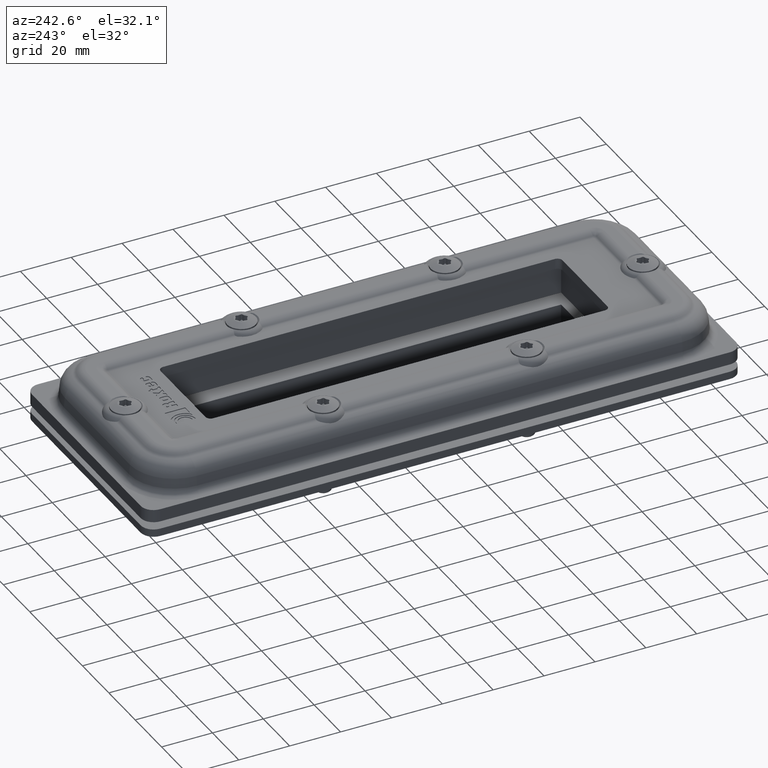
[diagram: clean part render]
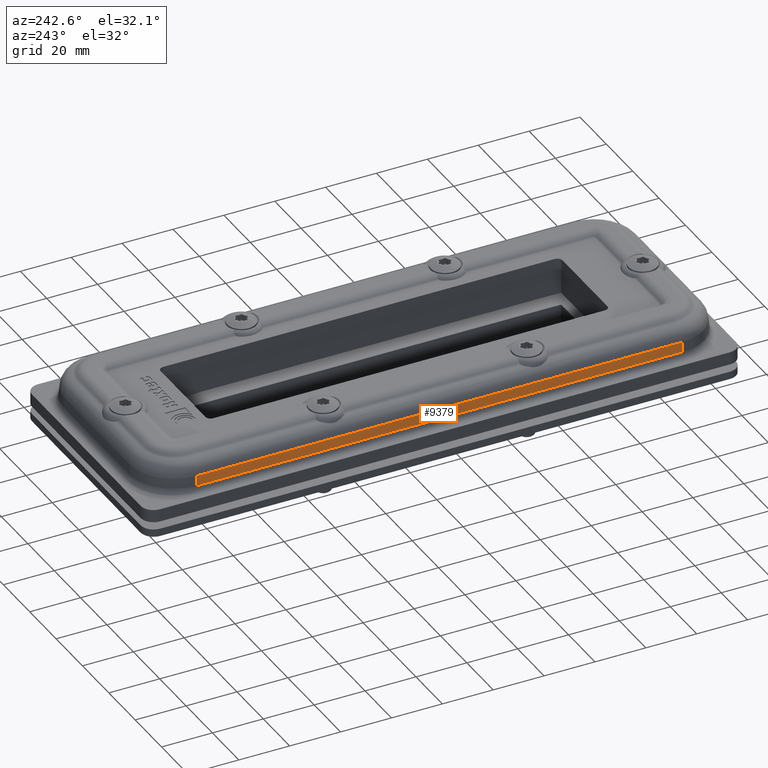
[diagram: same view with one face highlighted and labeled with its STEP entity id]
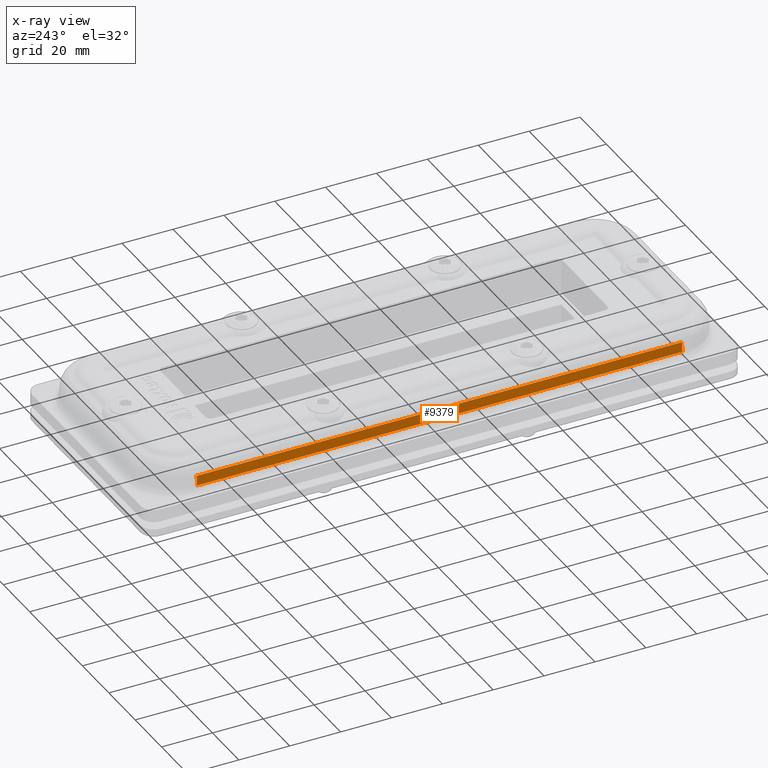
[diagram: x-ray of the same camera — body ghosted, the highlighted face saturated]
A machine part, auxiliary view. The second image highlights one B-rep face of the part: STEP entity #9379.
The next image is the same camera in x-ray: the body ghosted, the highlighted face saturated — about 0% of this face is hidden behind the body in this view.
In plain terms, the highlighted planar face has unit normal (0.9961, 0, -0.088).
Its self-contained STEP definition (entity closure, byte-faithful):
#354=PLANE('',#10179);
#784=FACE_OUTER_BOUND('',#1368,.T.);
#1368=EDGE_LOOP('',(#7878,#7879,#7880,#7881));
#2313=LINE('',#16159,#2969);
#2380=LINE('',#16983,#3036);
#2386=LINE('',#17004,#3042);
#2387=LINE('',#17006,#3043);
#2969=VECTOR('',#11851,19.083);
#3036=VECTOR('',#12186,19.083);
#3042=VECTOR('',#12218,0.380657326213493);
#3043=VECTOR('',#12221,0.380657326213554);
#4202=VERTEX_POINT('',#16156);
#4203=VERTEX_POINT('',#16158);
#4324=VERTEX_POINT('',#16977);
#4325=VERTEX_POINT('',#16981);
#5366=EDGE_CURVE('',#4203,#4202,#2313,.F.);
#5565=EDGE_CURVE('',#4324,#4325,#2380,.T.);
#5577=EDGE_CURVE('',#4203,#4324,#2386,.T.);
#5578=EDGE_CURVE('',#4202,#4325,#2387,.F.);
#7878=ORIENTED_EDGE('',*,*,#5578,.T.);
#7879=ORIENTED_EDGE('',*,*,#5565,.F.);
#7880=ORIENTED_EDGE('',*,*,#5577,.F.);
#7881=ORIENTED_EDGE('',*,*,#5366,.T.);
#9379=ADVANCED_FACE('',(#784),#354,.F.);
#10179=AXIS2_PLACEMENT_3D('',#17005,#12219,#12220);
#11851=DIRECTION('',(-3.3306690738755E-16,-1.,-4.69422931792557E-16));
#12186=DIRECTION('',(3.3306690738755E-16,1.,4.69422931792557E-16));
#12218=DIRECTION('',(-0.0879791741318758,4.96905608615309E-16,-0.996122314236095));
#12219=DIRECTION('center_axis',(0.996122314236094,1.41851706327533E-15,
-0.0879791741318821));
#12220=DIRECTION('ref_axis',(-0.0879791741318821,4.96905608615311E-16,-0.996122314236094));
#12221=DIRECTION('',(0.0879791741318571,-4.96905608615303E-16,0.996122314236096));
#16156=CARTESIAN_POINT('',(-4.19267338854167,9.5415,-0.147212495520764));
#16158=CARTESIAN_POINT('',(-4.19267338854165,-9.5415,-0.147212495520875));
#16159=CARTESIAN_POINT('',(-4.19267338854167,9.5415,-0.147212495520764));
#16977=CARTESIAN_POINT('',(-4.22616330572916,-9.5415,-0.526393752239584));
#16981=CARTESIAN_POINT('',(-4.22616330572918,9.5415,-0.526393752239534));
#16983=CARTESIAN_POINT('',(-4.22616330572916,-9.5415,-0.526393752239584));
#17004=CARTESIAN_POINT('',(-4.19267338854165,-9.5415,-0.147212495520875));
#17005=CARTESIAN_POINT('Origin',(-4.22783780158853,10.49565,-0.54535281507553));
#17006=CARTESIAN_POINT('',(-4.22616330572918,9.5415,-0.526393752239534));